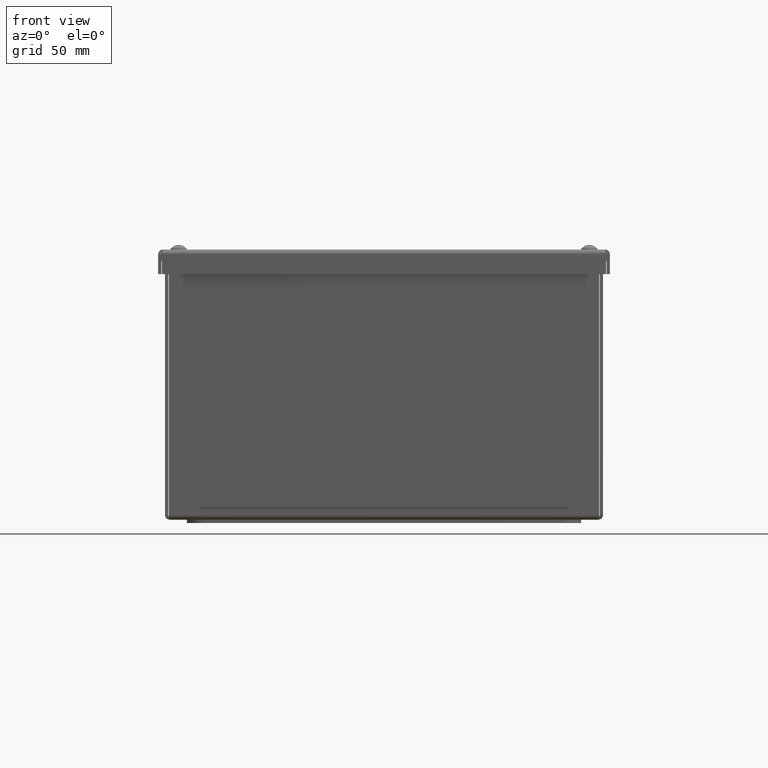
[diagram: clean part render]
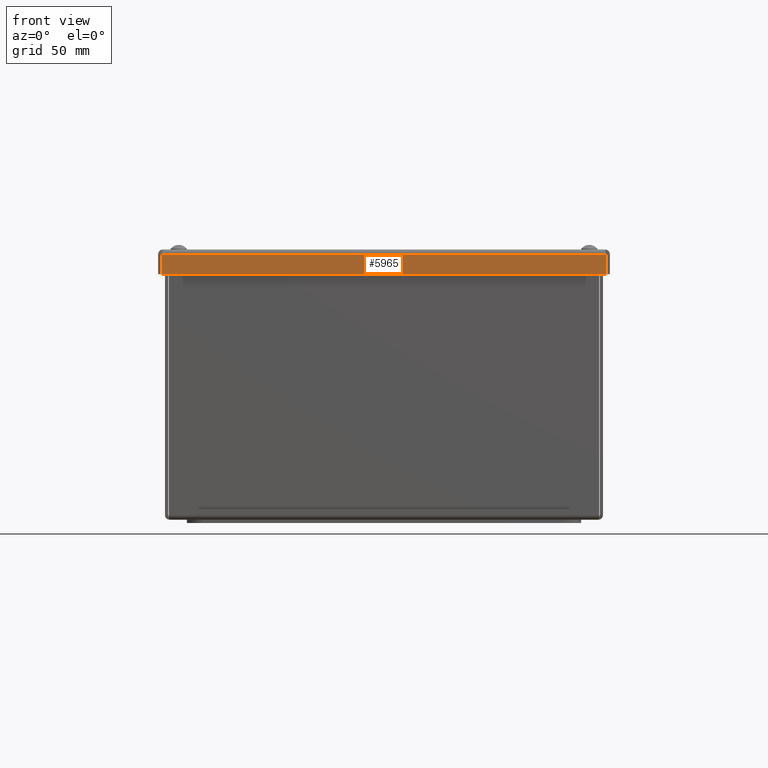
[diagram: same view with one face highlighted and labeled with its STEP entity id]
A machine part, front view. The second image highlights one B-rep face of the part: STEP entity #5965.
In plain terms, the highlighted planar face has unit normal (0, -1, -0).
Its self-contained STEP definition (entity closure, byte-faithful):
#5717=CARTESIAN_POINT('',(5.071201456543959,-5.156249999999996,-0.031249999999998));
#5718=VERTEX_POINT('',#5717);
#5719=CARTESIAN_POINT('',(-5.071201456543961,-5.15625,-0.03125));
#5720=VERTEX_POINT('',#5719);
#5721=CARTESIAN_POINT('',(5.071201456543959,-5.156249999999996,-0.031249999999999));
#5722=DIRECTION('',(-1.0,0.0,0.0));
#5723=VECTOR('',#5722,10.142402913087921);
#5724=LINE('',#5721,#5723);
#5725=EDGE_CURVE('',#5718,#5720,#5724,.T.);
#5803=CARTESIAN_POINT('',(-5.07120145654396,-5.156250000000002,-0.486));
#5804=VERTEX_POINT('',#5803);
#5805=CARTESIAN_POINT('',(-5.071201456543959,-5.156250000000003,-0.486));
#5806=DIRECTION('',(0.0,0.0,1.0));
#5807=VECTOR('',#5806,0.45475);
#5808=LINE('',#5805,#5807);
#5809=EDGE_CURVE('',#5804,#5720,#5808,.T.);
#5918=CARTESIAN_POINT('',(5.071201456543959,-5.156249999999999,-0.485999999999998));
#5919=VERTEX_POINT('',#5918);
#5920=CARTESIAN_POINT('',(5.07120145654396,-5.156249999999996,-0.031249999999998));
#5921=DIRECTION('',(0.0,0.0,-1.0));
#5922=VECTOR('',#5921,0.454749999999999);
#5923=LINE('',#5920,#5922);
#5924=EDGE_CURVE('',#5718,#5919,#5923,.T.);
#5942=CARTESIAN_POINT('',(5.071201456543959,-5.156249999999998,-0.485999999999998));
#5943=DIRECTION('',(-1.0,0.0,0.0));
#5944=VECTOR('',#5943,10.142402913087921);
#5945=LINE('',#5942,#5944);
#5946=EDGE_CURVE('',#5919,#5804,#5945,.T.);
#5954=CARTESIAN_POINT('',(4.703304E-016,-5.156249999999999,-0.222724367194027));
#5955=DIRECTION('',(0.0,-1.0,0.0));
#5956=DIRECTION('',(1.0,0.0,0.0));
#5957=AXIS2_PLACEMENT_3D('',#5954,#5955,#5956);
#5958=PLANE('',#5957);
#5959=ORIENTED_EDGE('',*,*,#5725,.T.);
#5960=ORIENTED_EDGE('',*,*,#5809,.F.);
#5961=ORIENTED_EDGE('',*,*,#5946,.F.);
#5962=ORIENTED_EDGE('',*,*,#5924,.F.);
#5963=EDGE_LOOP('',(#5959,#5960,#5961,#5962));
#5964=FACE_OUTER_BOUND('',#5963,.T.);
#5965=ADVANCED_FACE('',(#5964),#5958,.T.);